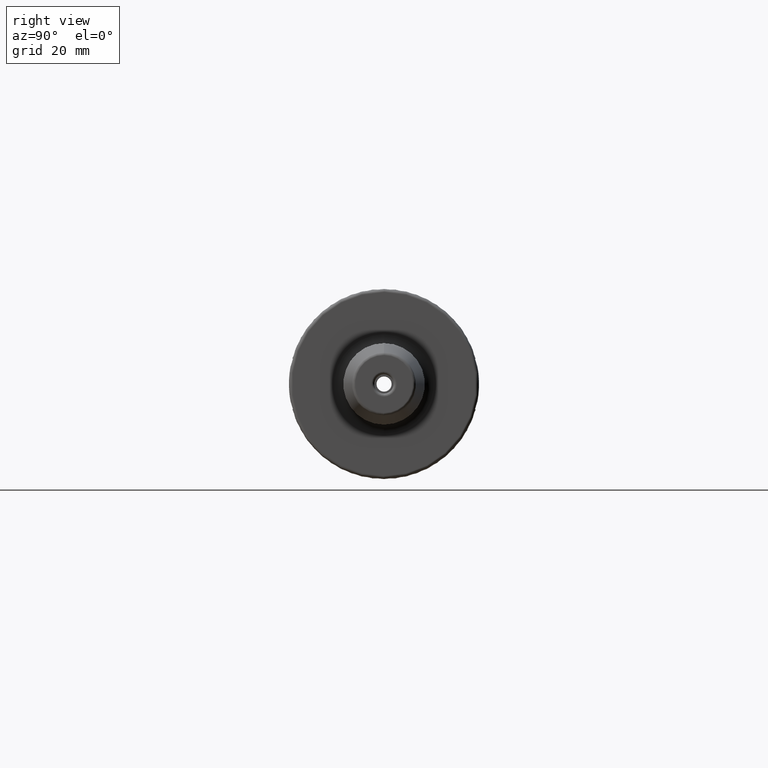
[diagram: clean part render]
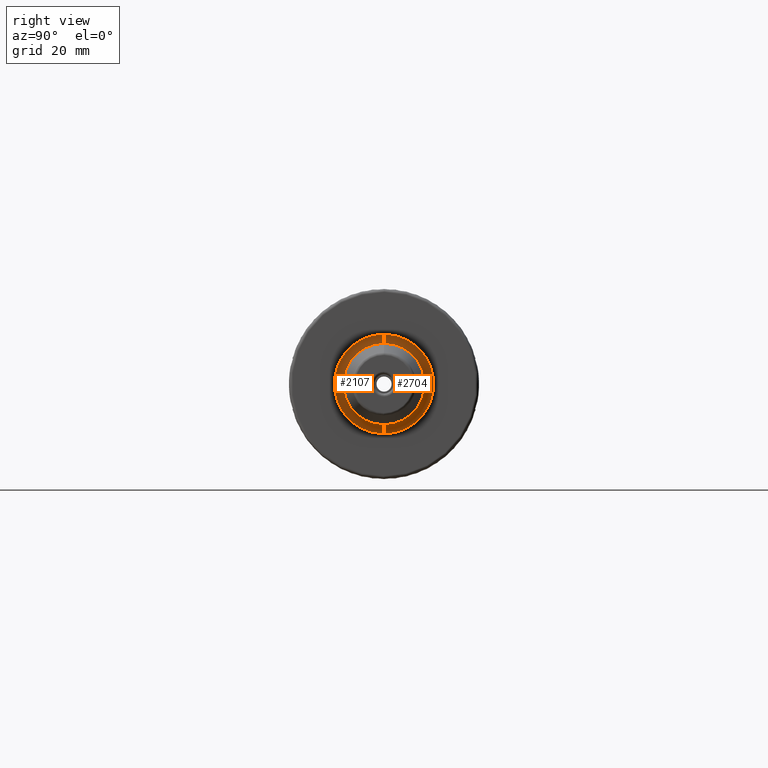
[diagram: same view with one multi-face feature highlighted, each face labeled with its STEP entity id]
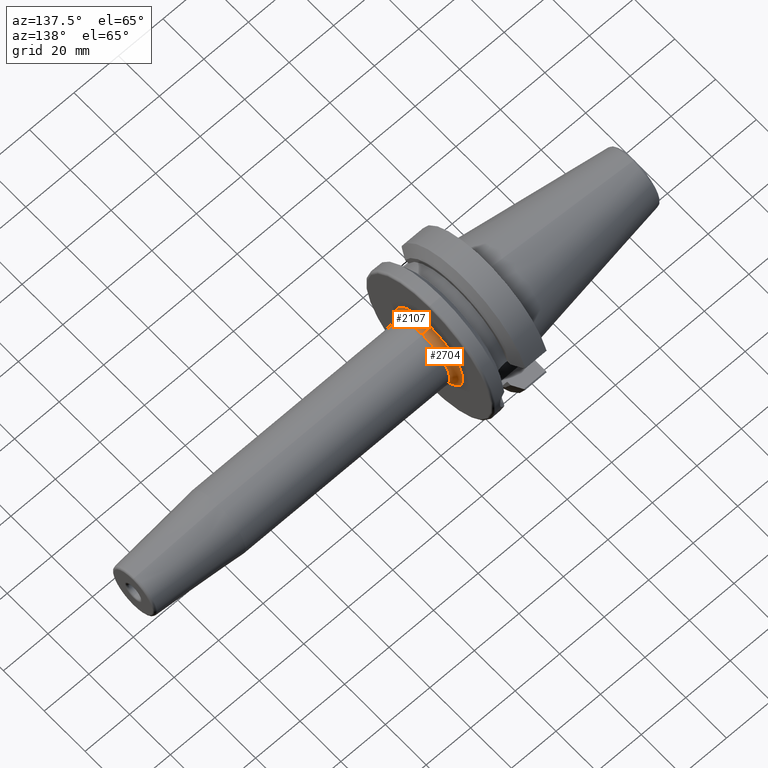
[diagram: same view with one multi-face feature highlighted, each face labeled with its STEP entity id]
A machine part, right view. The highlighted faces form ONE feature: a constant-radius fillet chain: 2 tangent blend faces with common blend radius 3 mm. The faces share edges in the B-rep.
A second angle (auxiliary view) of the same feature is appended — it is thin or edge-on in the first view.
Their STEP definitions:
[1] entity #2704 (Torus):
#512=CARTESIAN_POINT('',(3.E1,0.E0,1.65E1));
#513=DIRECTION('',(0.E0,1.E0,0.E0));
#514=DIRECTION('',(0.E0,0.E0,-1.E0));
#515=AXIS2_PLACEMENT_3D('',#512,#513,#514);
#522=CARTESIAN_POINT('',(3.E1,0.E0,-1.65E1));
#523=DIRECTION('',(0.E0,-1.E0,0.E0));
#524=DIRECTION('',(0.E0,0.E0,1.E0));
#525=AXIS2_PLACEMENT_3D('',#522,#523,#524);
#537=CARTESIAN_POINT('',(2.7E1,0.E0,0.E0));
#538=DIRECTION('',(1.E0,0.E0,0.E0));
#539=DIRECTION('',(0.E0,0.E0,-1.E0));
#540=AXIS2_PLACEMENT_3D('',#537,#538,#539);
#1047=CARTESIAN_POINT('',(3.E1,0.E0,0.E0));
#1048=DIRECTION('',(1.E0,0.E0,0.E0));
#1049=DIRECTION('',(0.E0,0.E0,-1.E0));
#1050=AXIS2_PLACEMENT_3D('',#1047,#1048,#1049);
#1267=CARTESIAN_POINT('',(3.E1,0.E0,-1.35E1));
#1268=VERTEX_POINT('',#1267);
#1299=CARTESIAN_POINT('',(3.E1,0.E0,1.35E1));
#1300=VERTEX_POINT('',#1299);
#1309=CARTESIAN_POINT('',(2.7E1,0.E0,-1.65E1));
#1310=CARTESIAN_POINT('',(2.7E1,0.E0,1.65E1));
#1311=VERTEX_POINT('',#1309);
#1312=VERTEX_POINT('',#1310);
#2693=CARTESIAN_POINT('',(3.E1,0.E0,0.E0));
#2694=DIRECTION('',(1.E0,0.E0,0.E0));
#2695=DIRECTION('',(0.E0,0.E0,1.E0));
#2696=AXIS2_PLACEMENT_3D('',#2693,#2694,#2695);
#2697=TOROIDAL_SURFACE('',#2696,1.65E1,3.E0);
#2698=ORIENTED_EDGE('',*,*,#2119,.F.);
#2699=ORIENTED_EDGE('',*,*,#2103,.F.);
#2700=ORIENTED_EDGE('',*,*,#2075,.T.);
#2701=ORIENTED_EDGE('',*,*,#2100,.T.);
#2702=EDGE_LOOP('',(#2698,#2699,#2700,#2701));
#2703=FACE_OUTER_BOUND('',#2702,.F.);
#2704=ADVANCED_FACE('',(#2703),#2697,.F.);
#516=CIRCLE('',#515,3.E0);
#526=CIRCLE('',#525,3.E0);
#541=CIRCLE('',#540,1.65E1);
#1051=CIRCLE('',#1050,1.35E1);
#2075=EDGE_CURVE('',#1268,#1300,#1051,.T.);
#2100=EDGE_CURVE('',#1300,#1312,#516,.T.);
#2103=EDGE_CURVE('',#1268,#1311,#526,.T.);
#2119=EDGE_CURVE('',#1311,#1312,#541,.T.);
[2] entity #2107 (Torus):
#512=CARTESIAN_POINT('',(3.E1,0.E0,1.65E1));
#513=DIRECTION('',(0.E0,1.E0,0.E0));
#514=DIRECTION('',(0.E0,0.E0,-1.E0));
#515=AXIS2_PLACEMENT_3D('',#512,#513,#514);
#517=CARTESIAN_POINT('',(3.E1,0.E0,0.E0));
#518=DIRECTION('',(-1.E0,0.E0,0.E0));
#519=DIRECTION('',(0.E0,0.E0,-1.E0));
#520=AXIS2_PLACEMENT_3D('',#517,#518,#519);
#522=CARTESIAN_POINT('',(3.E1,0.E0,-1.65E1));
#523=DIRECTION('',(0.E0,-1.E0,0.E0));
#524=DIRECTION('',(0.E0,0.E0,1.E0));
#525=AXIS2_PLACEMENT_3D('',#522,#523,#524);
#542=CARTESIAN_POINT('',(2.7E1,0.E0,0.E0));
#543=DIRECTION('',(1.E0,0.E0,0.E0));
#544=DIRECTION('',(0.E0,0.E0,1.E0));
#545=AXIS2_PLACEMENT_3D('',#542,#543,#544);
#1267=CARTESIAN_POINT('',(3.E1,0.E0,-1.35E1));
#1268=VERTEX_POINT('',#1267);
#1299=CARTESIAN_POINT('',(3.E1,0.E0,1.35E1));
#1300=VERTEX_POINT('',#1299);
#1309=CARTESIAN_POINT('',(2.7E1,0.E0,-1.65E1));
#1310=CARTESIAN_POINT('',(2.7E1,0.E0,1.65E1));
#1311=VERTEX_POINT('',#1309);
#1312=VERTEX_POINT('',#1310);
#2093=CARTESIAN_POINT('',(3.E1,0.E0,0.E0));
#2094=DIRECTION('',(1.E0,0.E0,0.E0));
#2095=DIRECTION('',(0.E0,0.E0,1.E0));
#2096=AXIS2_PLACEMENT_3D('',#2093,#2094,#2095);
#2097=TOROIDAL_SURFACE('',#2096,1.65E1,3.E0);
#2099=ORIENTED_EDGE('',*,*,#2098,.F.);
#2101=ORIENTED_EDGE('',*,*,#2100,.F.);
#2102=ORIENTED_EDGE('',*,*,#2086,.F.);
#2104=ORIENTED_EDGE('',*,*,#2103,.T.);
#2105=EDGE_LOOP('',(#2099,#2101,#2102,#2104));
#2106=FACE_OUTER_BOUND('',#2105,.F.);
#2107=ADVANCED_FACE('',(#2106),#2097,.F.);
#516=CIRCLE('',#515,3.E0);
#521=CIRCLE('',#520,1.35E1);
#526=CIRCLE('',#525,3.E0);
#546=CIRCLE('',#545,1.65E1);
#2086=EDGE_CURVE('',#1268,#1300,#521,.T.);
#2098=EDGE_CURVE('',#1312,#1311,#546,.T.);
#2100=EDGE_CURVE('',#1300,#1312,#516,.T.);
#2103=EDGE_CURVE('',#1268,#1311,#526,.T.);